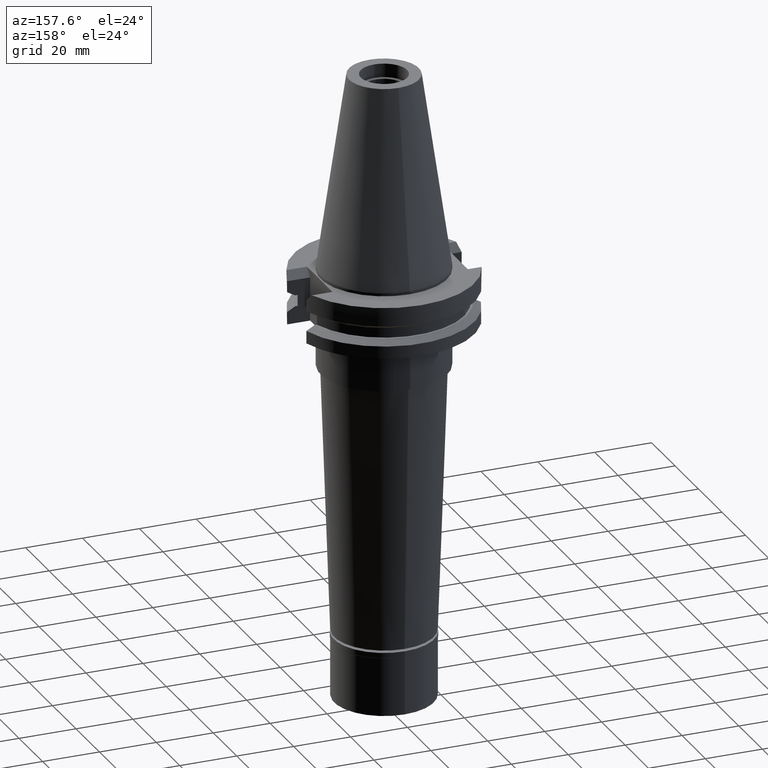
[diagram: clean part render]
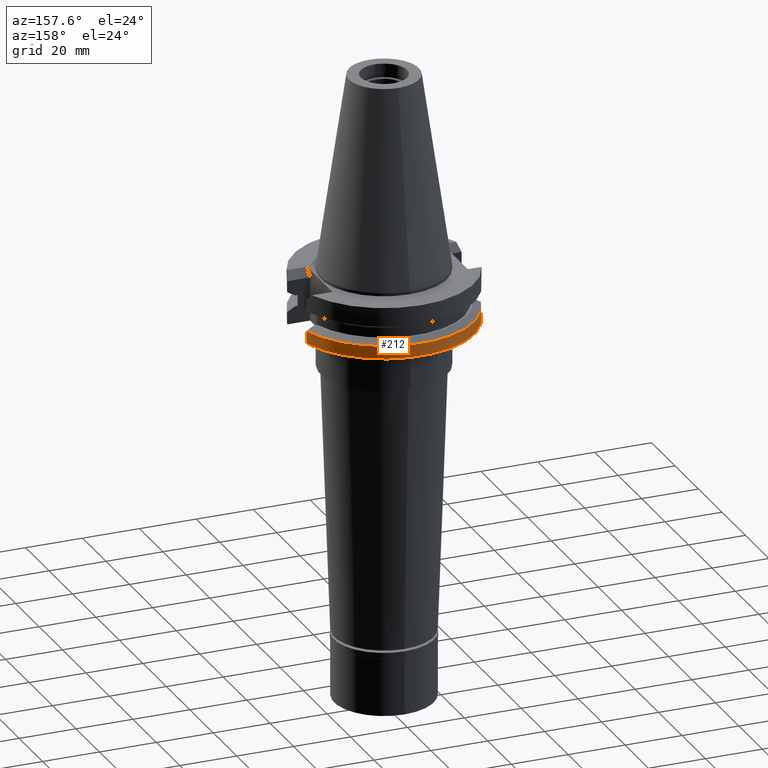
[diagram: same view with one face highlighted and labeled with its STEP entity id]
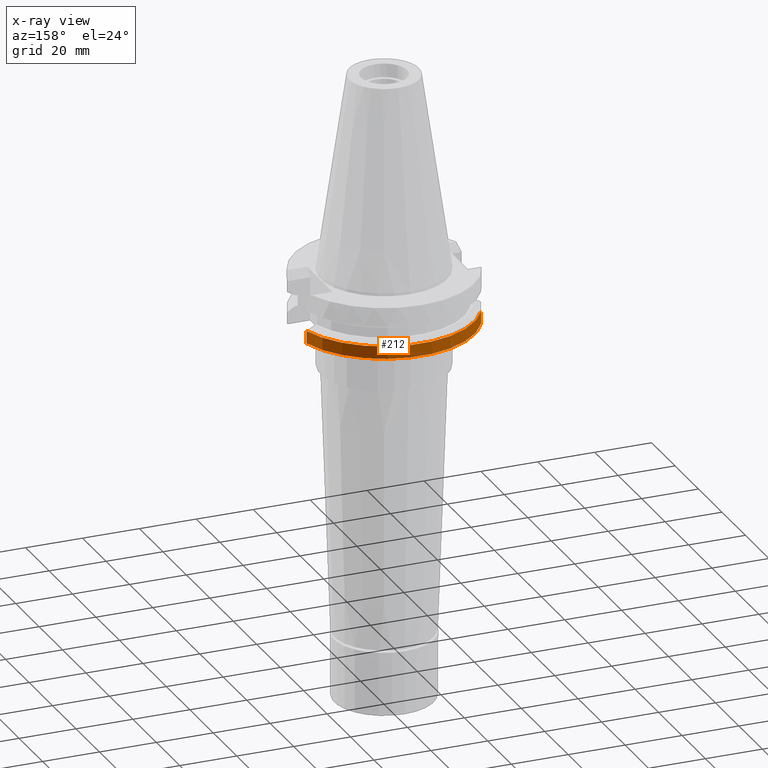
[diagram: x-ray of the same camera — body ghosted, the highlighted face saturated]
A machine part, auxiliary view. The second image highlights one B-rep face of the part: STEP entity #212.
The next image is the same camera in x-ray: the body ghosted, the highlighted face saturated — about 0% of this face is hidden behind the body in this view.
In plain terms, the highlighted cylindrical surface (partial cylindrical patch) has radius 31.75 mm, axis along (0, 0, -1).
Its self-contained STEP definition (entity closure, byte-faithful):
#2 = DIRECTION ( 'NONE',  ( -0.9661575315241073270, 0.2579527559055020958, 0.0000000000000000000 ) ) ;
#28 = AXIS2_PLACEMENT_3D ( 'NONE', #2711, #644, #114 ) ;
#93 = CIRCLE ( 'NONE', #466, 31.74999999999998579 ) ;
#114 = DIRECTION ( 'NONE',  ( 0.0000000000000000000, -1.000000000000000000, 0.0000000000000000000 ) ) ;
#212 = ADVANCED_FACE ( 'NONE', ( #916 ), #1402, .T. ) ;
#466 = AXIS2_PLACEMENT_3D ( 'NONE', #1777, #2058, #2 ) ;
#644 = DIRECTION ( 'NONE',  ( 0.0000000000000000000, 0.0000000000000000000, -1.000000000000000000 ) ) ;
#698 = CARTESIAN_POINT ( 'NONE',  ( 30.67550162588999640, 8.189999999999999503, -19.05000000000000071 ) ) ;
#916 = FACE_OUTER_BOUND ( 'NONE', #1707, .T. ) ;
#1081 = VECTOR ( 'NONE', #2250, 999.9999999999998863 ) ;
#1336 = LINE ( 'NONE', #3170, #2646 ) ;
#1352 = CARTESIAN_POINT ( 'NONE',  ( 0.0000000000000000000, 2.191474830903999739E-14, -19.05000000000000071 ) ) ;
#1390 = DIRECTION ( 'NONE',  ( 0.0000000000000000000, 0.0000000000000000000, 1.000000000000000000 ) ) ;
#1393 = EDGE_CURVE ( 'NONE', #2607, #2686, #93, .T. ) ;
#1402 = CYLINDRICAL_SURFACE ( 'NONE', #28, 31.75000000000000000 ) ;
#1407 = DIRECTION ( 'NONE',  ( 0.0000000000000000000, 1.000000000000000000, 0.0000000000000000000 ) ) ;
#1429 = LINE ( 'NONE', #698, #1081 ) ;
#1573 = VERTEX_POINT ( 'NONE', #2464 ) ;
#1707 = EDGE_LOOP ( 'NONE', ( #3098, #2825, #1809, #2060 ) ) ;
#1722 = CARTESIAN_POINT ( 'NONE',  ( 30.67550165918000005, 8.189999875310000732, -14.65183552780999854 ) ) ;
#1739 = CIRCLE ( 'NONE', #2969, 31.75000000000000000 ) ;
#1765 = CARTESIAN_POINT ( 'NONE',  ( -30.67550162588999640, 8.189999999999999503, -19.05000000000000071 ) ) ;
#1777 = CARTESIAN_POINT ( 'NONE',  ( 0.0000000000000000000, 1.055021971275999843E-14, -14.65183664206000103 ) ) ;
#1809 = ORIENTED_EDGE ( 'NONE', *, *, #2948, .F. ) ;
#2058 = DIRECTION ( 'NONE',  ( 0.0000000000000000000, 0.0000000000000000000, -1.000000000000000000 ) ) ;
#2060 = ORIENTED_EDGE ( 'NONE', *, *, #1393, .T. ) ;
#2233 = CARTESIAN_POINT ( 'NONE',  ( -30.67550162588999640, 8.190000000000997815, -14.65183664206000103 ) ) ;
#2250 = DIRECTION ( 'NONE',  ( 7.569381695186995734E-09, -2.835049563149999220E-08, 0.9999999999999996669 ) ) ;
#2464 = CARTESIAN_POINT ( 'NONE',  ( 30.67550162588999640, 8.189999999999999503, -19.05000000000000071 ) ) ;
#2607 = VERTEX_POINT ( 'NONE', #2233 ) ;
#2646 = VECTOR ( 'NONE', #2647, 1000.000000000000000 ) ;
#2647 = DIRECTION ( 'NONE',  ( -3.649242009320928727E-08, -1.366822114980972254E-07, -0.9999999999999900080 ) ) ;
#2686 = VERTEX_POINT ( 'NONE', #1722 ) ;
#2693 = VERTEX_POINT ( 'NONE', #1765 ) ;
#2711 = CARTESIAN_POINT ( 'NONE',  ( 0.0000000000000000000, 2.191474830903999739E-14, 78.94750000000000512 ) ) ;
#2825 = ORIENTED_EDGE ( 'NONE', *, *, #2881, .T. ) ;
#2881 = EDGE_CURVE ( 'NONE', #1573, #2693, #1739, .T. ) ;
#2948 = EDGE_CURVE ( 'NONE', #2607, #2693, #1336, .T. ) ;
#2969 = AXIS2_PLACEMENT_3D ( 'NONE', #1352, #1390, #1407 ) ;
#3098 = ORIENTED_EDGE ( 'NONE', *, *, #3157, .F. ) ;
#3157 = EDGE_CURVE ( 'NONE', #1573, #2686, #1429, .T. ) ;
#3170 = CARTESIAN_POINT ( 'NONE',  ( -30.67550146538999911, 8.190000601150000392, -14.65184201408000142 ) ) ;